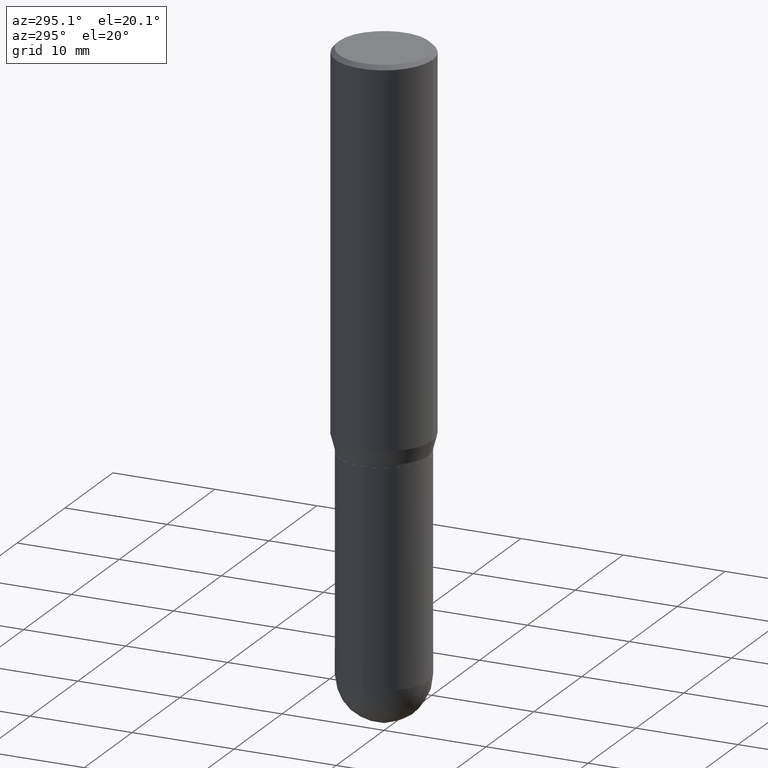
[diagram: clean part render]
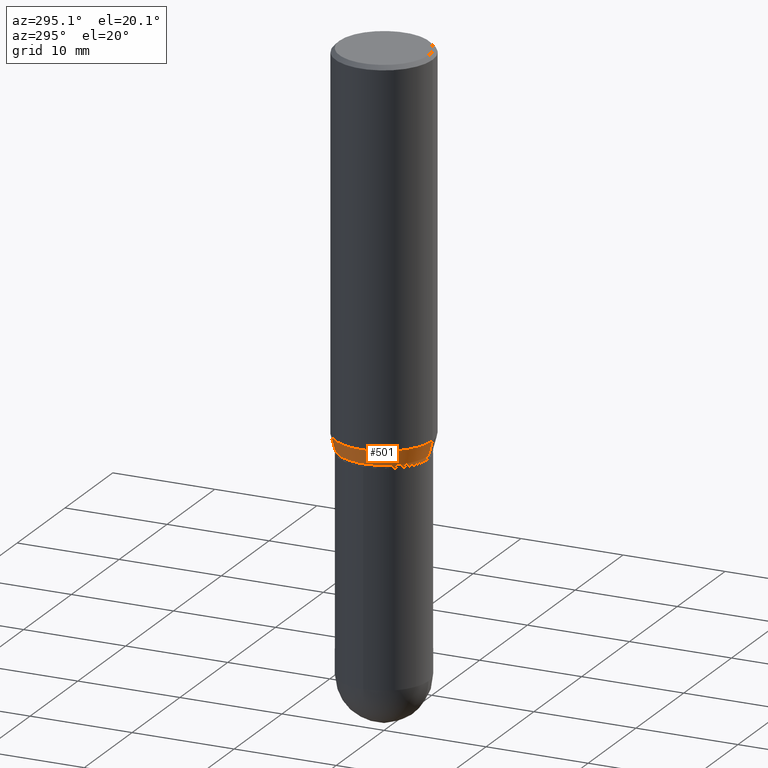
[diagram: same view with one face highlighted and labeled with its STEP entity id]
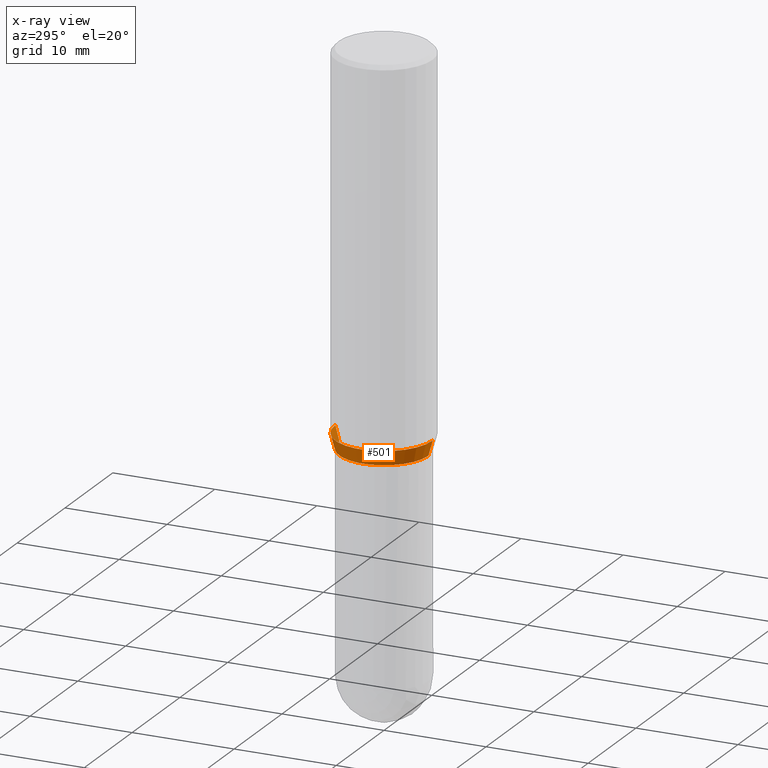
[diagram: x-ray of the same camera — body ghosted, the highlighted face saturated]
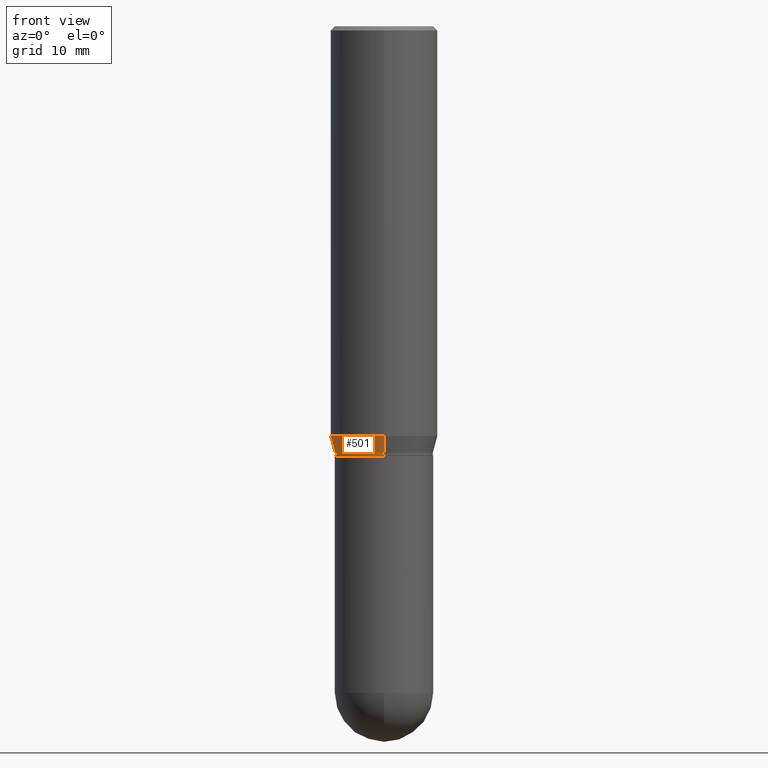
[diagram: same view with one face highlighted and labeled with its STEP entity id]
A machine part, auxiliary view. The second image highlights one B-rep face of the part: STEP entity #501.
The next image is the same camera in x-ray: the body ghosted, the highlighted face saturated — about 0% of this face is hidden behind the body in this view.
A second angle (front view) of the same face is appended — the face is thin or edge-on in the first view.
In plain terms, the highlighted conical surface has half-angle 15 deg.
Its self-contained STEP definition (entity closure, byte-faithful):
#3 = EDGE_CURVE ( 'NONE', #134, #171, #494, .T. ) ;
#14 = CIRCLE ( 'NONE', #354, 0.1718999999999998862 ) ;
#55 = EDGE_CURVE ( 'NONE', #163, #171, #126, .T. ) ;
#65 = DIRECTION ( 'NONE',  ( 1.839019923739597949E-15, 0.2588190451025246253, 0.9659258262890670910 ) ) ;
#67 = CARTESIAN_POINT ( 'NONE',  ( 1.221422962771647501E-15, 0.1718999999999946959, -1.490000000000000879 ) ) ;
#95 = CARTESIAN_POINT ( 'NONE',  ( -1.309305502066140101E-15, -0.1875000000000049960, -1.431780007401924903 ) ) ;
#97 = CARTESIAN_POINT ( 'NONE',  ( -1.200371284294231968E-15, -0.1719000000000050765, -1.489999999999999769 ) ) ;
#126 = CIRCLE ( 'NONE', #478, 0.1875000000000000278 ) ;
#134 = VERTEX_POINT ( 'NONE', #250 ) ;
#137 = DIRECTION ( 'NONE',  ( -2.445473974209437701E-29, 3.491473937938200789E-15, 1.000000000000000000 ) ) ;
#148 = ORIENTED_EDGE ( 'NONE', *, *, #55, .F. ) ;
#149 = CARTESIAN_POINT ( 'NONE',  ( 3.643756221572062694E-29, -5.202296167527919806E-15, -1.490000000000000213 ) ) ;
#163 = VERTEX_POINT ( 'NONE', #363 ) ;
#171 = VERTEX_POINT ( 'NONE', #95 ) ;
#180 = DIRECTION ( 'NONE',  ( -6.982962677686265922E-15, -1.000000000000000000, 2.913971193241880372E-15 ) ) ;
#196 = VECTOR ( 'NONE', #456, 39.37007874015748143 ) ;
#206 = ORIENTED_EDGE ( 'NONE', *, *, #367, .F. ) ;
#232 = CARTESIAN_POINT ( 'NONE',  ( 3.501380744894803912E-29, -4.999022580704787319E-15, -1.431780007401925348 ) ) ;
#236 = DIRECTION ( 'NONE',  ( -6.982962677686265922E-15, -1.000000000000000000, 3.178415350394723646E-15 ) ) ;
#250 = CARTESIAN_POINT ( 'NONE',  ( -1.200371284294231968E-15, -0.1719000000000050765, -1.489999999999999769 ) ) ;
#283 = EDGE_LOOP ( 'NONE', ( #206, #284, #375, #148 ) ) ;
#284 = ORIENTED_EDGE ( 'NONE', *, *, #377, .T. ) ;
#311 = DIRECTION ( 'NONE',  ( -6.982962677686265922E-15, -1.000000000000000000, 3.178415350394723646E-15 ) ) ;
#339 = AXIS2_PLACEMENT_3D ( 'NONE', #149, #412, #311 ) ;
#342 = FACE_OUTER_BOUND ( 'NONE', #283, .T. ) ;
#344 = CARTESIAN_POINT ( 'NONE',  ( 3.643756221572062694E-29, -5.202296167527919806E-15, -1.490000000000000213 ) ) ;
#354 = AXIS2_PLACEMENT_3D ( 'NONE', #344, #137, #236 ) ;
#363 = CARTESIAN_POINT ( 'NONE',  ( 1.332267629550222558E-15, 0.1874999999999950318, -1.431780007401926014 ) ) ;
#367 = EDGE_CURVE ( 'NONE', #446, #163, #488, .T. ) ;
#370 = CONICAL_SURFACE ( 'NONE', #339, 0.1718999999999998862, 0.2617993877991499629 ) ;
#375 = ORIENTED_EDGE ( 'NONE', *, *, #3, .T. ) ;
#377 = EDGE_CURVE ( 'NONE', #446, #134, #14, .T. ) ;
#412 = DIRECTION ( 'NONE',  ( -2.445473974209437701E-29, 3.491473937938200789E-15, 1.000000000000000000 ) ) ;
#446 = VERTEX_POINT ( 'NONE', #492 ) ;
#456 = DIRECTION ( 'NONE',  ( -1.807323732225328167E-15, -0.2588190451025179084, 0.9659258262890690894 ) ) ;
#478 = AXIS2_PLACEMENT_3D ( 'NONE', #232, #497, #180 ) ;
#488 = LINE ( 'NONE', #67, #495 ) ;
#492 = CARTESIAN_POINT ( 'NONE',  ( 1.276845296160934931E-15, 0.1718999999999946959, -1.490000000000000879 ) ) ;
#494 = LINE ( 'NONE', #97, #196 ) ;
#495 = VECTOR ( 'NONE', #65, 39.37007874015748854 ) ;
#497 = DIRECTION ( 'NONE',  ( -2.445473974209437701E-29, 3.491473937938200789E-15, 1.000000000000000000 ) ) ;
#501 = ADVANCED_FACE ( 'NONE', ( #342 ), #370, .T. ) ;